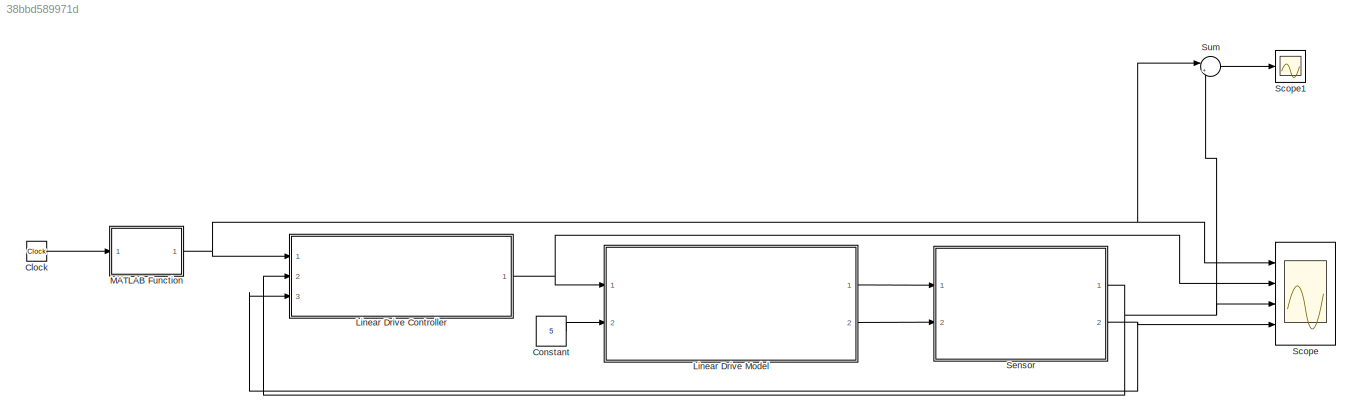
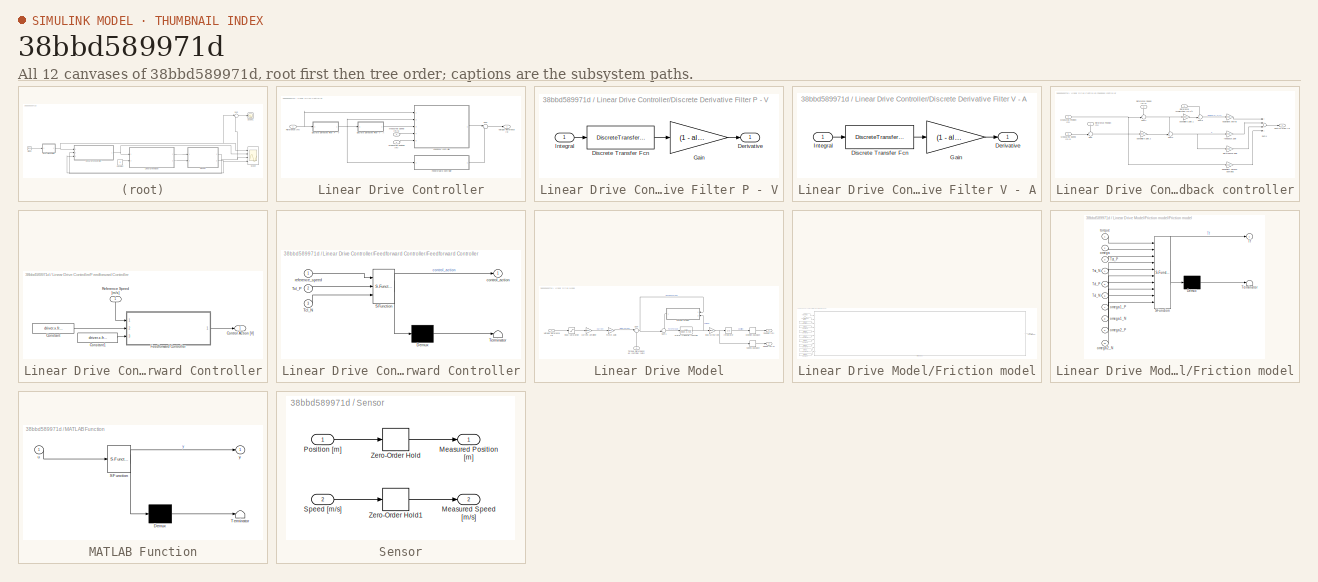
[diagram: thumbnail index - all 12 canvases of the model, root first then tree order]
MODEL slx_38bbd589971d
KIND model
CONFIG AbsTol = auto
CONFIG EnableMultiTasking = off
CONFIG FixedStep = Ts
CONFIG MaxStep = auto
CONFIG MinStep = auto
CONFIG RelTol = 1e-3
CONFIG SampleTimeConstraint = Unconstrained
CONFIG Solver = VariableStepAuto
CONFIG SolverName = VariableStepAuto
CONFIG StartTime = 0.0
CONFIG StopTime = 10
BLOCK [Clock] Clock
BLOCK [Constant] Constant
  Value = 5
BLOCK [SubSystem] Linear Drive Controller
  Ports = [3, 1]
  RequestExecContextInheritance = off
  Variant = off
BLOCK [SubSystem] Linear Drive Controller/Discrete Derivative Filter P - V
  Ports = [1, 1]
  RequestExecContextInheritance = off
  Variant = off
BLOCK [Outport] Linear Drive Controller/Discrete Derivative Filter P - V/Derivative
  IconDisplay = Port number
BLOCK [DiscreteTransferFcn] Linear Drive Controller/Discrete Derivative Filter P - V/Discrete Transfer Fcn
  Denominator = [1 -alpha]
  InputPortMap = u0
  Numerator = [1 -1]
  Ports = [1, 1]
BLOCK [Gain] Linear Drive Controller/Discrete Derivative Filter P - V/Gain
  Gain = (1 - alpha)/Ts
  OutDataTypeStr = Inherit: Inherit via internal rule
  ParamDataTypeStr = Inherit: Inherit via internal rule
  SaturateOnIntegerOverflow = off
BLOCK [Inport] Linear Drive Controller/Discrete Derivative Filter P - V/Integral
  IconDisplay = Port number
BLOCK [SubSystem] Linear Drive Controller/Discrete Derivative Filter V - A
  Ports = [1, 1]
  RequestExecContextInheritance = off
  Variant = off
BLOCK [Outport] Linear Drive Controller/Discrete Derivative Filter V - A/Derivative
  IconDisplay = Port number
BLOCK [DiscreteTransferFcn] Linear Drive Controller/Discrete Derivative Filter V - A/Discrete Transfer Fcn
  Denominator = [1 -alpha]
  InputPortMap = u0
  Numerator = [1 -1]
  Ports = [1, 1]
BLOCK [Gain] Linear Drive Controller/Discrete Derivative Filter V - A/Gain
  Gain = (1 - alpha)/Ts
  OutDataTypeStr = Inherit: Inherit via internal rule
  ParamDataTypeStr = Inherit: Inherit via internal rule
  SaturateOnIntegerOverflow = off
BLOCK [Inport] Linear Drive Controller/Discrete Derivative Filter V - A/Integral
  IconDisplay = Port number
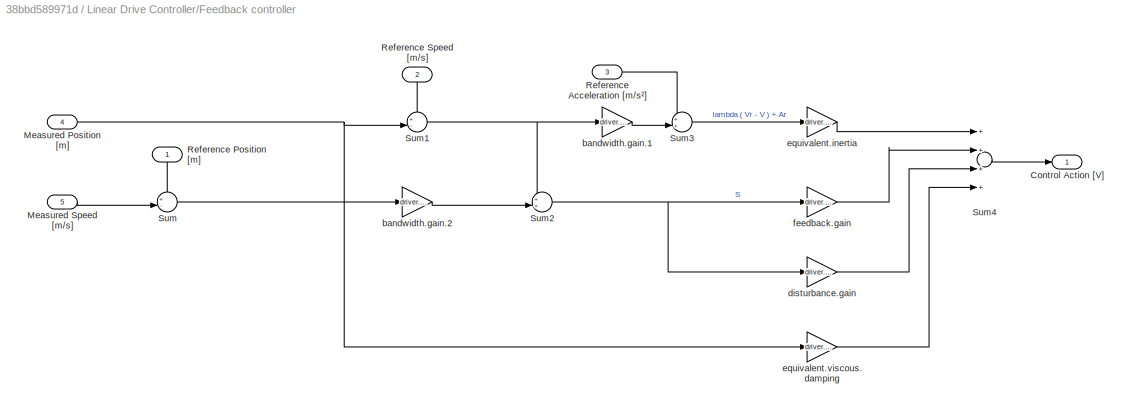
BLOCK [SubSystem] Linear Drive Controller/Feedback controller
  Ports = [5, 1]
  RequestExecContextInheritance = off
  Variant = off
BLOCK [Outport] Linear Drive Controller/Feedback controller/Control Action [V]
  IconDisplay = Port number
BLOCK [Inport] Linear Drive Controller/Feedback controller/Measured Position [m]
  IconDisplay = Port number
  Port = 4
BLOCK [Inport] Linear Drive Controller/Feedback controller/Measured Speed [m//s]
  IconDisplay = Port number
  Port = 5
BLOCK [Inport] Linear Drive Controller/Feedback controller/Reference Acceleration [m//s²]
  IconDisplay = Port number
  Port = 3
BLOCK [Inport] Linear Drive Controller/Feedback controller/Reference Position [m]
  IconDisplay = Port number
BLOCK [Inport] Linear Drive Controller/Feedback controller/Reference Speed [m//s]
  IconDisplay = Port number
  Port = 2
BLOCK [Sum] Linear Drive Controller/Feedback controller/Sum
  IconShape = round
  InputSameDT = off
  Inputs = +-|
  OutDataTypeStr = Inherit: Inherit via internal rule
  Ports = [2, 1]
  SaturateOnIntegerOverflow = off
BLOCK [Sum] Linear Drive Controller/Feedback controller/Sum1
  IconShape = round
  InputSameDT = off
  Inputs = +-|
  OutDataTypeStr = Inherit: Inherit via internal rule
  Ports = [2, 1]
  SaturateOnIntegerOverflow = off
BLOCK [Sum] Linear Drive Controller/Feedback controller/Sum2
  IconShape = round
  InputSameDT = off
  Inputs = ++|
  OutDataTypeStr = Inherit: Inherit via internal rule
  Ports = [2, 1]
  SaturateOnIntegerOverflow = off
BLOCK [Sum] Linear Drive Controller/Feedback controller/Sum3
  IconShape = round
  InputSameDT = off
  Inputs = ++|
  OutDataTypeStr = Inherit: Inherit via internal rule
  Ports = [2, 1]
  SaturateOnIntegerOverflow = off
BLOCK [Sum] Linear Drive Controller/Feedback controller/Sum4
  InputSameDT = off
  Inputs = ++++
  OutDataTypeStr = Inherit: Inherit via internal rule
  Ports = [4, 1]
  SaturateOnIntegerOverflow = off
BLOCK [Gain] Linear Drive Controller/Feedback controller/bandwidth.gain.1
  Gain = driver.x.controller.lambda
  OutDataTypeStr = Inherit: Inherit via internal rule
  ParamDataTypeStr = Inherit: Inherit via internal rule
  SaturateOnIntegerOverflow = off
BLOCK [Gain] Linear Drive Controller/Feedback controller/bandwidth.gain.2
  Gain = driver.x.controller.lambda
  OutDataTypeStr = Inherit: Inherit via internal rule
  ParamDataTypeStr = Inherit: Inherit via internal rule
  SaturateOnIntegerOverflow = off
BLOCK [Gain] Linear Drive Controller/Feedback controller/disturbance.gain
  Gain = driver.x.disturbance_gain
  OutDataTypeStr = Inherit: Inherit via internal rule
  ParamDataTypeStr = Inherit: Inherit via internal rule
  SaturateOnIntegerOverflow = off
BLOCK [Gain] Linear Drive Controller/Feedback controller/equivalent.inertia
  Gain = driver.x.total_reflected_inertia/(driver.x.lead_screw_ratio * driver.x.current_amplifier_gain * driver.x.motor_gain)
  OutDataTypeStr = Inherit: Inherit via internal rule
  ParamDataTypeStr = Inherit: Inherit via internal rule
  SaturateOnIntegerOverflow = off
BLOCK [Gain] Linear Drive Controller/Feedback controller/equivalent.viscous.damping
  Gain = driver.x.viscous_damping/(driver.x.lead_screw_ratio * driver.x.current_amplifier_gain * driver.x.motor_gain)
  OutDataTypeStr = Inherit: Inherit via internal rule
  ParamDataTypeStr = Inherit: Inherit via internal rule
  SaturateOnIntegerOverflow = off
BLOCK [Gain] Linear Drive Controller/Feedback controller/feedback.gain
  Gain = driver.x.controller.fback_gain
  OutDataTypeStr = Inherit: Inherit via internal rule
  ParamDataTypeStr = Inherit: Inherit via internal rule
  SaturateOnIntegerOverflow = off
BLOCK [SubSystem] Linear Drive Controller/Feedforward Controller
  Ports = [1, 1]
  RequestExecContextInheritance = off
  Variant = off
BLOCK [Constant] Linear Drive Controller/Feedforward Controller/Constant
  Value = driver.x.friction.Tcl_P
BLOCK [Constant] Linear Drive Controller/Feedforward Controller/Constant1
  Value = driver.x.friction.Tcl_N
BLOCK [Outport] Linear Drive Controller/Feedforward Controller/Control Action [V]
  IconDisplay = Port number
BLOCK [SubSystem] Linear Drive Controller/Feedforward Controller/Feedforward Controller
  ErrorFcn = Stateflow.Translate.translate
  PermitHierarchicalResolution = ExplicitOnly
  Ports = [3, 1]
  RequestExecContextInheritance = off
  SFBlockType = MATLAB Function
  TreatAsAtomicUnit = on
  Variant = off
BLOCK [Demux] Linear Drive Controller/Feedforward Controller/Feedforward Controller/ Demux 
  Outputs = 1
  Ports = [1, 1]
BLOCK [S-Function] Linear Drive Controller/Feedforward Controller/Feedforward Controller/ SFunction 
  EnableBusSupport = on
  FunctionName = sf_sfun
  PortCounts = [3 2]
  Ports = [3, 2]
  SFcnIsStateOwnerBlock = off
  SFunctionDeploymentMode = off
  Tag = Stateflow S-Function drive 1
BLOCK [Terminator] Linear Drive Controller/Feedforward Controller/Feedforward Controller/ Terminator 
BLOCK [Inport] Linear Drive Controller/Feedforward Controller/Feedforward Controller/Tcl_N
  IconDisplay = Port number
  Port = 3
BLOCK [Inport] Linear Drive Controller/Feedforward Controller/Feedforward Controller/Tcl_P
  IconDisplay = Port number
  Port = 2
BLOCK [Outport] Linear Drive Controller/Feedforward Controller/Feedforward Controller/control_action
  IconDisplay = Port number
BLOCK [Inport] Linear Drive Controller/Feedforward Controller/Feedforward Controller/reference_speed
  IconDisplay = Port number
BLOCK [Inport] Linear Drive Controller/Feedforward Controller/Reference Speed [m//s]
  IconDisplay = Port number
BLOCK [Inport] Linear Drive Controller/Measured Position [m]
  IconDisplay = Port number
  Port = 2
BLOCK [Inport] Linear Drive Controller/Measured Speed [m//s]
  IconDisplay = Port number
  Port = 3
BLOCK [Inport] Linear Drive Controller/Reference [m]
  IconDisplay = Port number
BLOCK [Sum] Linear Drive Controller/Sum
  IconShape = round
  InputSameDT = off
  Inputs = |++
  OutDataTypeStr = Inherit: Inherit via internal rule
  Ports = [2, 1]
  SaturateOnIntegerOverflow = off
BLOCK [Outport] Linear Drive Controller/Voltage Reference [V]
  IconDisplay = Port number
BLOCK [SubSystem] Linear Drive Model
  Ports = [2, 2]
  RequestExecContextInheritance = off
  Variant = off
BLOCK [SubSystem] Linear Drive Model/Friction model
  Ports = [2, 1]
  RequestExecContextInheritance = off
  Variant = off
BLOCK [Inport] Linear Drive Model/Friction model/Angular speed [rad//s]
  IconDisplay = Port number
  Port = 2
BLOCK [Constant] Linear Drive Model/Friction model/Constant
  Value = driver.x.friction.Tst_P
BLOCK [Constant] Linear Drive Model/Friction model/Constant1
  Value = driver.x.friction.Tst_N
BLOCK [Constant] Linear Drive Model/Friction model/Constant2
  Value = driver.x.friction.Tcl_P
BLOCK [Constant] Linear Drive Model/Friction model/Constant3
  Value = driver.x.friction.Tcl_N
BLOCK [Constant] Linear Drive Model/Friction model/Constant4
  Value = driver.x.friction.omega1_P
BLOCK [Constant] Linear Drive Model/Friction model/Constant5
  Value = driver.x.friction.omega1_N
BLOCK [Constant] Linear Drive Model/Friction model/Constant6
  Value = driver.x.friction.omega2_P
BLOCK [Constant] Linear Drive Model/Friction model/Constant7
  Value = driver.x.friction.omega2_N
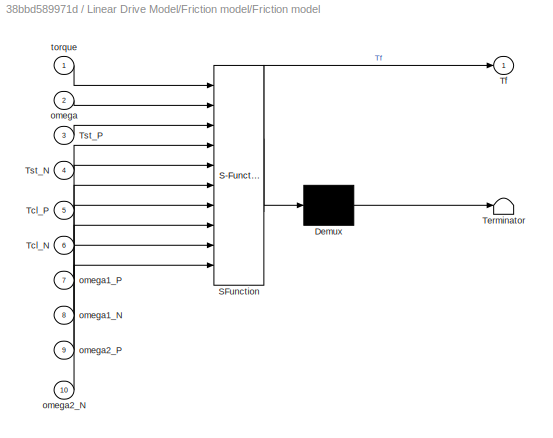
BLOCK [SubSystem] Linear Drive Model/Friction model/Friction model
  ErrorFcn = Stateflow.Translate.translate
  PermitHierarchicalResolution = ExplicitOnly
  Ports = [10, 1]
  RequestExecContextInheritance = off
  SFBlockType = MATLAB Function
  TreatAsAtomicUnit = on
  Variant = off
BLOCK [Demux] Linear Drive Model/Friction model/Friction model/ Demux 
  Outputs = 1
  Ports = [1, 1]
BLOCK [S-Function] Linear Drive Model/Friction model/Friction model/ SFunction 
  EnableBusSupport = on
  FunctionName = sf_sfun
  PortCounts = [10 2]
  Ports = [10, 2]
  SFcnIsStateOwnerBlock = off
  SFunctionDeploymentMode = off
  Tag = Stateflow S-Function drive 2
BLOCK [Terminator] Linear Drive Model/Friction model/Friction model/ Terminator 
BLOCK [Inport] Linear Drive Model/Friction model/Friction model/Tcl_N
  IconDisplay = Port number
  Port = 6
BLOCK [Inport] Linear Drive Model/Friction model/Friction model/Tcl_P
  IconDisplay = Port number
  Port = 5
BLOCK [Outport] Linear Drive Model/Friction model/Friction model/Tf
  IconDisplay = Port number
BLOCK [Inport] Linear Drive Model/Friction model/Friction model/Tst_N
  IconDisplay = Port number
  Port = 4
BLOCK [Inport] Linear Drive Model/Friction model/Friction model/Tst_P
  IconDisplay = Port number
  Port = 3
BLOCK [Inport] Linear Drive Model/Friction model/Friction model/omega
  IconDisplay = Port number
  Port = 2
BLOCK [Inport] Linear Drive Model/Friction model/Friction model/omega1_N
  IconDisplay = Port number
  Port = 8
BLOCK [Inport] Linear Drive Model/Friction model/Friction model/omega1_P
  IconDisplay = Port number
  Port = 7
BLOCK [Inport] Linear Drive Model/Friction model/Friction model/omega2_N
  IconDisplay = Port number
  Port = 10
BLOCK [Inport] Linear Drive Model/Friction model/Friction model/omega2_P
  IconDisplay = Port number
  Port = 9
BLOCK [Inport] Linear Drive Model/Friction model/Friction model/torque
  IconDisplay = Port number
BLOCK [Inport] Linear Drive Model/Friction model/Torque [Nm]
  IconDisplay = Port number
BLOCK [Outport] Linear Drive Model/Friction model/Torque friction [Nm]
  IconDisplay = Port number
BLOCK [Integrator] Linear Drive Model/Integrator
  Ports = [1, 1]
BLOCK [Outport] Linear Drive Model/Position [m]
  IconDisplay = Port number
BLOCK [Outport] Linear Drive Model/Speed [m//s]
  IconDisplay = Port number
  Port = 2
BLOCK [Sum] Linear Drive Model/Sum
  IconShape = round
  InputSameDT = off
  Inputs = |++
  OutDataTypeStr = Inherit: Inherit via internal rule
  Ports = [2, 1]
  SaturateOnIntegerOverflow = off
BLOCK [Sum] Linear Drive Model/Sum1
  IconShape = round
  InputSameDT = off
  Inputs = ++|
  OutDataTypeStr = Inherit: Inherit via internal rule
  Ports = [2, 1]
  SaturateOnIntegerOverflow = off
BLOCK [Inport] Linear Drive Model/Torque Disturbancies (cutting) [Nm]
  IconDisplay = Port number
  Port = 2
BLOCK [Inport] Linear Drive Model/Voltage Reference [V]
  IconDisplay = Port number
BLOCK [Gain] Linear Drive Model/current.amplifier
  Gain = driver.x.current_amplifier_gain
  OutDataTypeStr = Inherit: Inherit via internal rule
  ParamDataTypeStr = Inherit: Inherit via internal rule
  SaturateOnIntegerOverflow = off
BLOCK [Saturate] Linear Drive Model/input.saturation
  InputPortMap = u0
  LowerLimit = -driver.x.input_saturation
  Ports = [1, 1]
  UpperLimit = driver.x.input_saturation
BLOCK [Gain] Linear Drive Model/lead.screw.ratio
  Gain = driver.x.lead_screw_ratio
  OutDataTypeStr = Inherit: Inherit via internal rule
  ParamDataTypeStr = Inherit: Inherit via internal rule
  SaturateOnIntegerOverflow = off
BLOCK [Gain] Linear Drive Model/motor.gain
  Gain = driver.x.motor_gain
  OutDataTypeStr = Inherit: Inherit via internal rule
  ParamDataTypeStr = Inherit: Inherit via internal rule
  SaturateOnIntegerOverflow = off
BLOCK [TransferFcn] Linear Drive Model/motor.transfer.function
  Denominator = [driver.x.total_reflected_inertia driver.x.viscous_damping]
BLOCK [Backlash] Linear Drive Model/position.backlash
  BacklashWidth = driver.x.backlash_band
  InputProcessing = Elements as channels (sample based)
BLOCK [Backlash] Linear Drive Model/speed.backlash
  BacklashWidth = driver.x.backlash_band
  InputProcessing = Elements as channels (sample based)
BLOCK [SubSystem] MATLAB Function
  ErrorFcn = Stateflow.Translate.translate
  PermitHierarchicalResolution = ExplicitOnly
  Ports = [1, 1]
  RequestExecContextInheritance = off
  SFBlockType = MATLAB Function
  TreatAsAtomicUnit = on
  Variant = off
BLOCK [Demux] MATLAB Function/ Demux 
  Outputs = 1
  Ports = [1, 1]
BLOCK [S-Function] MATLAB Function/ SFunction 
  EnableBusSupport = on
  FunctionName = sf_sfun
  PortCounts = [1 2]
  Ports = [1, 2]
  SFcnIsStateOwnerBlock = off
  SFunctionDeploymentMode = off
  Tag = Stateflow S-Function drive 3
BLOCK [Terminator] MATLAB Function/ Terminator 
BLOCK [Inport] MATLAB Function/u
  IconDisplay = Port number
BLOCK [Outport] MATLAB Function/y
  IconDisplay = Port number
BLOCK [Scope] Scope
  NumInputPorts = 4
  Ports = [4]
  ScopeSpecificationString = Simulink.scopes.TimeScopeBlockCfg('CurrentConfiguration', extmgr.ConfigurationSet(extmgr.Configuration('Core','General UI',true,'ShowMainToolbar',false),extmgr.Configuration('Core','Source UI',true),extmgr.Configuration('Sources','WiredSimulink',true,'DataLoggingVariableName','ScopeData1'),extmgr.Configuration('Visuals','Time Domain',true,'SerializedDisplays',{struct('MinYLimReal','-0.125','MaxYLi...<+3400ch>
BLOCK [Scope] Scope1
  NumInputPorts = 1
  Ports = [1]
  ScopeSpecificationString = Simulink.scopes.TimeScopeBlockCfg('CurrentConfiguration', extmgr.ConfigurationSet(extmgr.Configuration('Core','General UI',true,'ShowMainToolbar',false),extmgr.Configuration('Core','Source UI',true),extmgr.Configuration('Sources','WiredSimulink',true,'DataLoggingVariableName','ScopeData2'),extmgr.Configuration('Visuals','Time Domain',true,'SerializedDisplays',{struct('MinYLimReal','-0.00061','MaxY...<+1425ch>
BLOCK [SubSystem] Sensor
  Ports = [2, 2]
  RequestExecContextInheritance = off
  Variant = off
BLOCK [Outport] Sensor/Measured Position [m]
  IconDisplay = Port number
BLOCK [Outport] Sensor/Measured Speed [m//s]
  IconDisplay = Port number
  Port = 2
BLOCK [Inport] Sensor/Position [m]
  IconDisplay = Port number
BLOCK [Inport] Sensor/Speed [m//s]
  IconDisplay = Port number
  Port = 2
BLOCK [ZeroOrderHold] Sensor/Zero-Order Hold
  SampleTime = Ts
BLOCK [ZeroOrderHold] Sensor/Zero-Order Hold1
  SampleTime = Ts
BLOCK [Sum] Sum
  IconShape = round
  InputSameDT = off
  Inputs = |+-
  OutDataTypeStr = Inherit: Inherit via internal rule
  Ports = [2, 1]
  SaturateOnIntegerOverflow = off
LINE Clock:1 -> MATLAB Function:1
LINE Constant:1 -> Linear Drive Model:2
LINE Linear Drive Controller/Discrete Derivative Filter P - V/Discrete Transfer Fcn:1 -> Linear Drive Controller/Discrete Derivative Filter P - V/Gain:1
LINE Linear Drive Controller/Discrete Derivative Filter P - V/Gain:1 -> Linear Drive Controller/Discrete Derivative Filter P - V/Derivative:1
LINE Linear Drive Controller/Discrete Derivative Filter P - V/Integral:1 -> Linear Drive Controller/Discrete Derivative Filter P - V/Discrete Transfer Fcn:1
NET Linear Drive Controller/Discrete Derivative Filter P - V:1 -> Linear Drive Controller/Discrete Derivative Filter V - A:1, Linear Drive Controller/Feedback controller:2, Linear Drive Controller/Feedforward Controller:1
LINE Linear Drive Controller/Discrete Derivative Filter V - A/Discrete Transfer Fcn:1 -> Linear Drive Controller/Discrete Derivative Filter V - A/Gain:1
LINE Linear Drive Controller/Discrete Derivative Filter V - A/Gain:1 -> Linear Drive Controller/Discrete Derivative Filter V - A/Derivative:1
LINE Linear Drive Controller/Discrete Derivative Filter V - A/Integral:1 -> Linear Drive Controller/Discrete Derivative Filter V - A/Discrete Transfer Fcn:1
LINE Linear Drive Controller/Discrete Derivative Filter V - A:1 -> Linear Drive Controller/Feedback controller:3
NET Linear Drive Controller/Feedback controller/Measured Position [m]:1 -> Linear Drive Controller/Feedback controller/Sum1:2, Linear Drive Controller/Feedback controller/equivalent.viscous.damping:1
LINE Linear Drive Controller/Feedback controller/Measured Speed [m//s]:1 -> Linear Drive Controller/Feedback controller/Sum:2
LINE Linear Drive Controller/Feedback controller/Reference Acceleration [m//s²]:1 -> Linear Drive Controller/Feedback controller/Sum3:1
LINE Linear Drive Controller/Feedback controller/Reference Position [m]:1 -> Linear Drive Controller/Feedback controller/Sum:1
LINE Linear Drive Controller/Feedback controller/Reference Speed [m//s]:1 -> Linear Drive Controller/Feedback controller/Sum1:1
NET Linear Drive Controller/Feedback controller/Sum1:1 -> Linear Drive Controller/Feedback controller/Sum2:1, Linear Drive Controller/Feedback controller/bandwidth.gain.1:1
NET Linear Drive Controller/Feedback controller/Sum2:1 -> Linear Drive Controller/Feedback controller/disturbance.gain:1, Linear Drive Controller/Feedback controller/feedback.gain:1
LINE Linear Drive Controller/Feedback controller/Sum3:1 -> Linear Drive Controller/Feedback controller/equivalent.inertia:1
LINE Linear Drive Controller/Feedback controller/Sum4:1 -> Linear Drive Controller/Feedback controller/Control Action [V]:1
LINE Linear Drive Controller/Feedback controller/Sum:1 -> Linear Drive Controller/Feedback controller/bandwidth.gain.2:1
LINE Linear Drive Controller/Feedback controller/bandwidth.gain.1:1 -> Linear Drive Controller/Feedback controller/Sum3:2
LINE Linear Drive Controller/Feedback controller/bandwidth.gain.2:1 -> Linear Drive Controller/Feedback controller/Sum2:2
LINE Linear Drive Controller/Feedback controller/disturbance.gain:1 -> Linear Drive Controller/Feedback controller/Sum4:3
LINE Linear Drive Controller/Feedback controller/equivalent.inertia:1 -> Linear Drive Controller/Feedback controller/Sum4:1
LINE Linear Drive Controller/Feedback controller/equivalent.viscous.damping:1 -> Linear Drive Controller/Feedback controller/Sum4:4
LINE Linear Drive Controller/Feedback controller/feedback.gain:1 -> Linear Drive Controller/Feedback controller/Sum4:2
LINE Linear Drive Controller/Feedback controller:1 -> Linear Drive Controller/Sum:1
LINE Linear Drive Controller/Feedforward Controller/Constant1:1 -> Linear Drive Controller/Feedforward Controller/Feedforward Controller:3
LINE Linear Drive Controller/Feedforward Controller/Constant:1 -> Linear Drive Controller/Feedforward Controller/Feedforward Controller:2
LINE Linear Drive Controller/Feedforward Controller/Feedforward Controller:1 -> Linear Drive Controller/Feedforward Controller/Control Action [V]:1
LINE Linear Drive Controller/Feedforward Controller/Reference Speed [m//s]:1 -> Linear Drive Controller/Feedforward Controller/Feedforward Controller:1
LINE Linear Drive Controller/Feedforward Controller:1 -> Linear Drive Controller/Sum:2
LINE Linear Drive Controller/Measured Position [m]:1 -> Linear Drive Controller/Feedback controller:5
LINE Linear Drive Controller/Measured Speed [m//s]:1 -> Linear Drive Controller/Feedback controller:4
NET Linear Drive Controller/Reference [m]:1 -> Linear Drive Controller/Discrete Derivative Filter P - V:1, Linear Drive Controller/Feedback controller:1
LINE Linear Drive Controller/Sum:1 -> Linear Drive Controller/Voltage Reference [V]:1
NET Linear Drive Controller:1 -> Linear Drive Model:1, Scope:2
LINE Linear Drive Model/Friction model/Angular speed [rad//s]:1 -> Linear Drive Model/Friction model/Friction model:2
LINE Linear Drive Model/Friction model/Constant1:1 -> Linear Drive Model/Friction model/Friction model:4
LINE Linear Drive Model/Friction model/Constant2:1 -> Linear Drive Model/Friction model/Friction model:5
LINE Linear Drive Model/Friction model/Constant3:1 -> Linear Drive Model/Friction model/Friction model:6
LINE Linear Drive Model/Friction model/Constant4:1 -> Linear Drive Model/Friction model/Friction model:7
LINE Linear Drive Model/Friction model/Constant5:1 -> Linear Drive Model/Friction model/Friction model:8
LINE Linear Drive Model/Friction model/Constant6:1 -> Linear Drive Model/Friction model/Friction model:9
LINE Linear Drive Model/Friction model/Constant7:1 -> Linear Drive Model/Friction model/Friction model:10
LINE Linear Drive Model/Friction model/Constant:1 -> Linear Drive Model/Friction model/Friction model:3
LINE Linear Drive Model/Friction model/Friction model:1 -> Linear Drive Model/Friction model/Torque friction [Nm]:1
LINE Linear Drive Model/Friction model/Torque [Nm]:1 -> Linear Drive Model/Friction model/Friction model:1
LINE Linear Drive Model/Friction model:1 -> Linear Drive Model/Sum1:1
LINE Linear Drive Model/Integrator:1 -> Linear Drive Model/position.backlash:1
LINE Linear Drive Model/Sum1:1 -> Linear Drive Model/motor.transfer.function:1
NET Linear Drive Model/Sum:1 -> Linear Drive Model/Friction model:1, Linear Drive Model/Sum1:2
LINE Linear Drive Model/Torque Disturbancies (cutting) [Nm]:1 -> Linear Drive Model/Sum:2
LINE Linear Drive Model/Voltage Reference [V]:1 -> Linear Drive Model/input.saturation:1
LINE Linear Drive Model/current.amplifier:1 -> Linear Drive Model/motor.gain:1
LINE Linear Drive Model/input.saturation:1 -> Linear Drive Model/current.amplifier:1
NET Linear Drive Model/lead.screw.ratio:1 -> Linear Drive Model/Integrator:1, Linear Drive Model/speed.backlash:1
LINE Linear Drive Model/motor.gain:1 -> Linear Drive Model/Sum:1
NET Linear Drive Model/motor.transfer.function:1 -> Linear Drive Model/Friction model:2, Linear Drive Model/lead.screw.ratio:1
LINE Linear Drive Model/position.backlash:1 -> Linear Drive Model/Position [m]:1
LINE Linear Drive Model/speed.backlash:1 -> Linear Drive Model/Speed [m//s]:1
LINE Linear Drive Model:1 -> Sensor:1
LINE Linear Drive Model:2 -> Sensor:2
NET MATLAB Function:1 -> Linear Drive Controller:1, Scope:1, Sum:1
LINE Sensor/Position [m]:1 -> Sensor/Zero-Order Hold:1
LINE Sensor/Speed [m//s]:1 -> Sensor/Zero-Order Hold1:1
LINE Sensor/Zero-Order Hold1:1 -> Sensor/Measured Speed [m//s]:1
LINE Sensor/Zero-Order Hold:1 -> Sensor/Measured Position [m]:1
NET Sensor:1 -> Linear Drive Controller:2, Scope:3, Sum:2
NET Sensor:2 -> Linear Drive Controller:3, Scope:4
LINE Sum:1 -> Scope1:1
note: NET lines group one-source signal fan-out (src -> all destinations, sorted); 1:1 wires keep LINE
CHART Linear Drive Controller/Feedforward Controller/Feedforward Controller states=1 transitions=1
  STATE_LABEL 'eML_blk_kernel()'
  STATE_LABEL 'SCRIPT:\nfunction control_action = compensateFriction(reference_speed, Tcl_P, Tcl_N)\n%#codegen\n  if reference_speed > 0\n      control_action = Tcl_P;\n  elseif reference_speed < 0\n      control_action = Tcl_N;\n  else\n      control_action = 0;\n  end\n\n'
CHART Linear Drive Model/Friction model/Friction model states=1 transitions=1
  STATE_LABEL 'eML_blk_kernel()'
  STATE_LABEL 'SCRIPT:\nfunction Tf = fcn(torque, omega,  Tst_P, Tst_N, Tcl_P, Tcl_N, omega1_P, omega1_N, omega2_P, omega2_N)\n%#codegen\n  if omega > 0\n     Tf = (Tst_P * exp(-omega/omega1_P) + Tcl_P * (1 - exp(-omega/omega2_P)));\n  elseif omega < 0\n     Tf = (Tst_N * exp(-omega/omega1_N) + Tcl_N * (1 - exp(-omega/omega2_N)));\n  else\n     if torque == 0\n         Tf = 0.0;\n     elseif torque > Tst_P\n         Tf = T...<+101ch>'
CHART MATLAB Function states=1 transitions=1
  STATE_LABEL 'eML_blk_kernel()'
  STATE_LABEL 'SCRIPT:\nfunction y = fcn(u)\n\ny = -0.002 * u^3 + 0.03 * u^2;\n'
